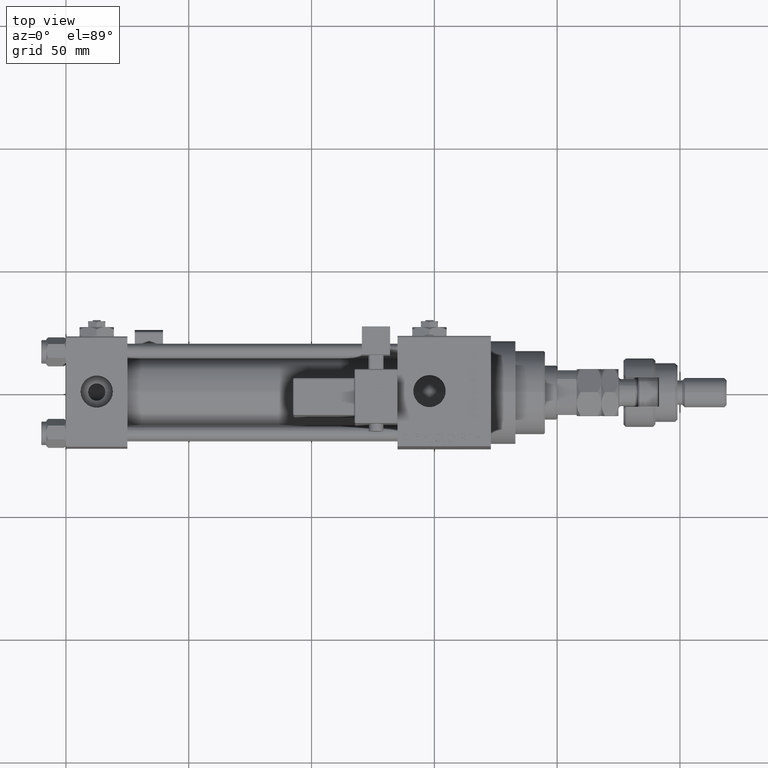
[diagram: clean part render]
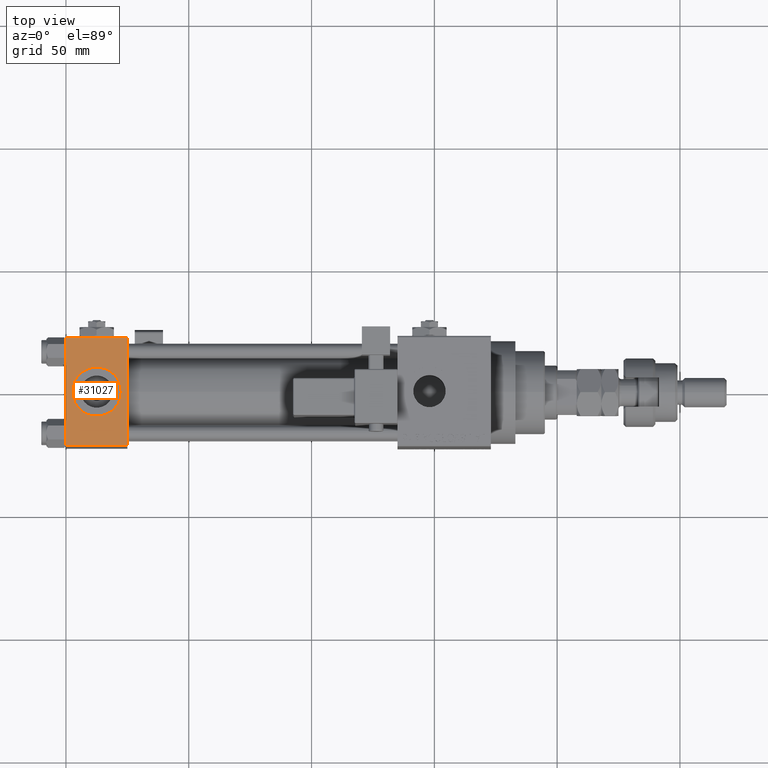
[diagram: same view with one face highlighted and labeled with its STEP entity id]
A machine part, top view. The second image highlights one B-rep face of the part: STEP entity #31027.
In plain terms, the highlighted planar face has unit normal (0, 0, -1).
Its self-contained STEP definition (entity closure, byte-faithful):
#175 = CARTESIAN_POINT ( 'NONE',  ( 0.000000000000000000, 21.99999999999999289, 22.50000000000000355 ) ) ;
#2544 = VERTEX_POINT ( 'NONE', #49231 ) ;
#3213 = EDGE_LOOP ( 'NONE', ( #38795, #35670, #7572, #11611 ) ) ;
#3745 = LINE ( 'NONE', #175, #42532 ) ;
#6969 = CARTESIAN_POINT ( 'NONE',  ( 0.000000000000000000, -21.99999999999997868, 22.50000000000000000 ) ) ;
#7572 = ORIENTED_EDGE ( 'NONE', *, *, #10039, .F. ) ;
#7920 = CARTESIAN_POINT ( 'NONE',  ( 12.50000000000000000, -1.734723475976807094E-15, 22.50000000000000000 ) ) ;
#8301 = EDGE_CURVE ( 'NONE', #11122, #2544, #29742, .T. ) ;
#10039 = EDGE_CURVE ( 'NONE', #49010, #50427, #32731, .T. ) ;
#10554 = CARTESIAN_POINT ( 'NONE',  ( 25.00000000000000000, 21.99999999999999289, 22.50000000000000355 ) ) ;
#11122 = VERTEX_POINT ( 'NONE', #53925 ) ;
#11490 = DIRECTION ( 'NONE',  ( 0.000000000000000000, 0.000000000000000000, 1.000000000000000000 ) ) ;
#11606 = DIRECTION ( 'NONE',  ( 0.000000000000000000, -1.000000000000000000, -7.709882115452476934E-17 ) ) ;
#11611 = ORIENTED_EDGE ( 'NONE', *, *, #50925, .T. ) ;
#15717 = CARTESIAN_POINT ( 'NONE',  ( 0.000000000000000000, 22.50000000000000000, 22.50000000000000355 ) ) ;
#16072 = FACE_BOUND ( 'NONE', #27770, .T. ) ;
#16280 = ORIENTED_EDGE ( 'NONE', *, *, #17152, .F. ) ;
#17152 = EDGE_CURVE ( 'NONE', #2544, #11122, #40614, .T. ) ;
#18739 = VERTEX_POINT ( 'NONE', #6969 ) ;
#20150 = ORIENTED_EDGE ( 'NONE', *, *, #8301, .F. ) ;
#20467 = DIRECTION ( 'NONE',  ( 0.000000000000000000, 1.000000000000000000, 7.709882115452476934E-17 ) ) ;
#20677 = CARTESIAN_POINT ( 'NONE',  ( 25.00000000000000000, 22.50000000000000000, 22.50000000000000355 ) ) ;
#21307 = DIRECTION ( 'NONE',  ( -1.000000000000000000, 0.000000000000000000, 0.000000000000000000 ) ) ;
#21361 = VECTOR ( 'NONE', #46197, 1000.000000000000000 ) ;
#21486 = CARTESIAN_POINT ( 'NONE',  ( 25.00000000000000000, -21.99999999999999289, 22.50000000000000000 ) ) ;
#21818 = EDGE_CURVE ( 'NONE', #18739, #50427, #38479, .T. ) ;
#22778 = VECTOR ( 'NONE', #11606, 1000.000000000000000 ) ;
#27629 = CARTESIAN_POINT ( 'NONE',  ( 12.50000000000000000, -1.734723475976807094E-15, 22.50000000000000000 ) ) ;
#27770 = EDGE_LOOP ( 'NONE', ( #16280, #20150 ) ) ;
#28867 = LINE ( 'NONE', #15717, #40134 ) ;
#29742 = CIRCLE ( 'NONE', #34980, 9.999999999999998224 ) ;
#29957 = VERTEX_POINT ( 'NONE', #31447 ) ;
#31027 = ADVANCED_FACE ( 'NONE', ( #16072, #44899 ), #32789, .F. ) ;
#31447 = CARTESIAN_POINT ( 'NONE',  ( 0.000000000000000000, 21.99999999999999289, 22.50000000000000355 ) ) ;
#32731 = LINE ( 'NONE', #20677, #22778 ) ;
#32789 = PLANE ( 'NONE',  #46203 ) ;
#34057 = EDGE_CURVE ( 'NONE', #29957, #18739, #28867, .T. ) ;
#34980 = AXIS2_PLACEMENT_3D ( 'NONE', #7920, #11490, #44997 ) ;
#35670 = ORIENTED_EDGE ( 'NONE', *, *, #21818, .T. ) ;
#38479 = LINE ( 'NONE', #21486, #21361 ) ;
#38795 = ORIENTED_EDGE ( 'NONE', *, *, #34057, .T. ) ;
#39232 = CARTESIAN_POINT ( 'NONE',  ( 25.00000000000000000, -21.99999999999997868, 22.50000000000000000 ) ) ;
#40134 = VECTOR ( 'NONE', #53016, 1000.000000000000000 ) ;
#40614 = CIRCLE ( 'NONE', #52856, 9.999999999999998224 ) ;
#41312 = DIRECTION ( 'NONE',  ( 0.000000000000000000, 7.709882115452476934E-17, -1.000000000000000000 ) ) ;
#42532 = VECTOR ( 'NONE', #21307, 1000.000000000000000 ) ;
#44127 = DIRECTION ( 'NONE',  ( 0.000000000000000000, 0.000000000000000000, 1.000000000000000000 ) ) ;
#44899 = FACE_OUTER_BOUND ( 'NONE', #3213, .T. ) ;
#44997 = DIRECTION ( 'NONE',  ( 1.000000000000000000, 0.000000000000000000, 0.000000000000000000 ) ) ;
#46197 = DIRECTION ( 'NONE',  ( 1.000000000000000000, 0.000000000000000000, 0.000000000000000000 ) ) ;
#46203 = AXIS2_PLACEMENT_3D ( 'NONE', #49539, #41312, #20467 ) ;
#48246 = DIRECTION ( 'NONE',  ( 1.000000000000000000, 0.000000000000000000, 0.000000000000000000 ) ) ;
#49010 = VERTEX_POINT ( 'NONE', #10554 ) ;
#49231 = CARTESIAN_POINT ( 'NONE',  ( 22.50000000000000000, -1.734723475976807094E-15, 22.50000000000000000 ) ) ;
#49539 = CARTESIAN_POINT ( 'NONE',  ( 25.00000000000000000, 22.50000000000000000, 22.50000000000000355 ) ) ;
#50427 = VERTEX_POINT ( 'NONE', #39232 ) ;
#50925 = EDGE_CURVE ( 'NONE', #49010, #29957, #3745, .T. ) ;
#52856 = AXIS2_PLACEMENT_3D ( 'NONE', #27629, #44127, #48246 ) ;
#53016 = DIRECTION ( 'NONE',  ( 0.000000000000000000, -1.000000000000000000, -7.709882115452476934E-17 ) ) ;
#53925 = CARTESIAN_POINT ( 'NONE',  ( 2.500000000000003997, -5.100766768294543310E-16, 22.50000000000000000 ) ) ;